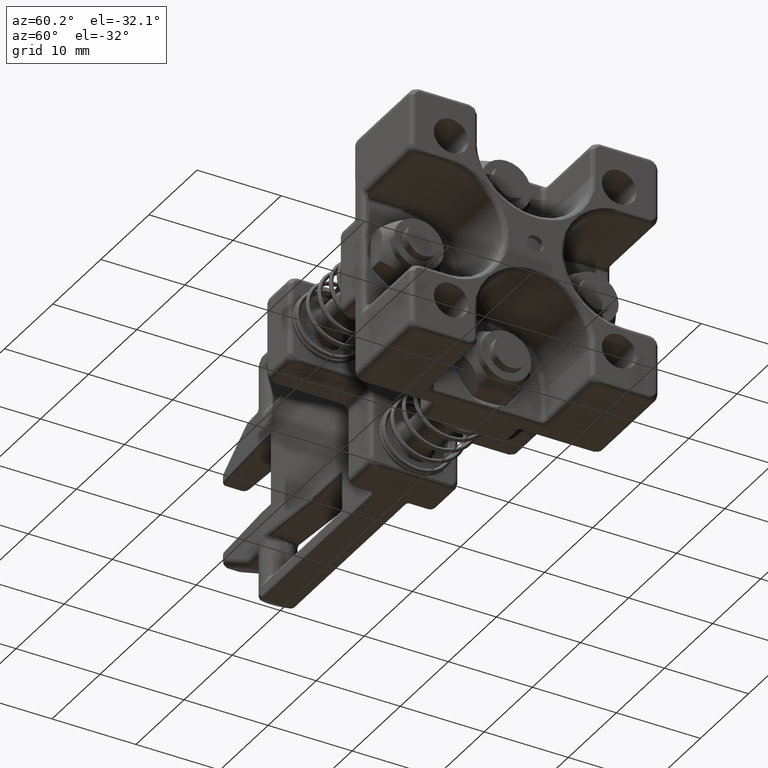
[diagram: clean part render]
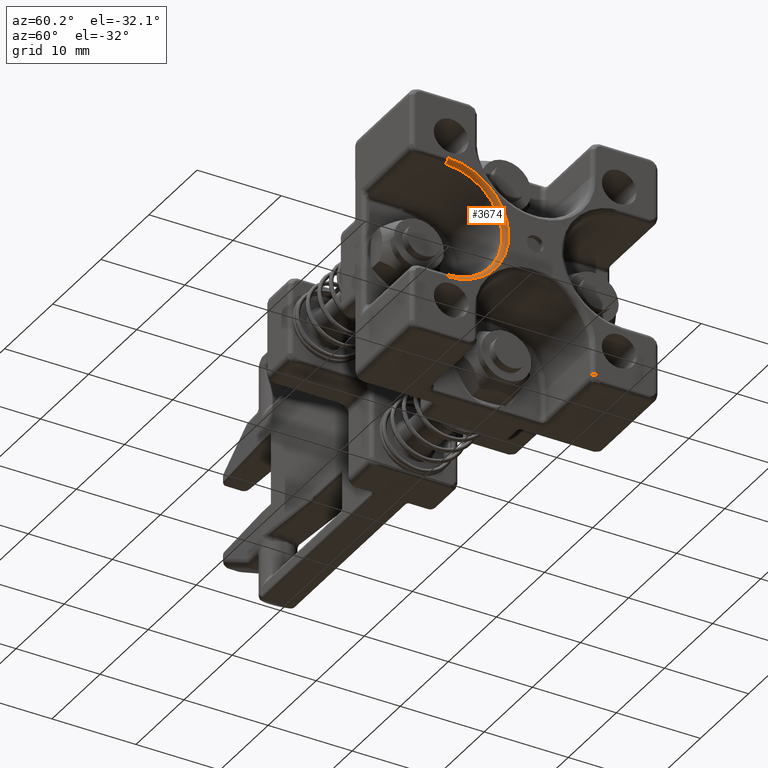
[diagram: same view with one face highlighted and labeled with its STEP entity id]
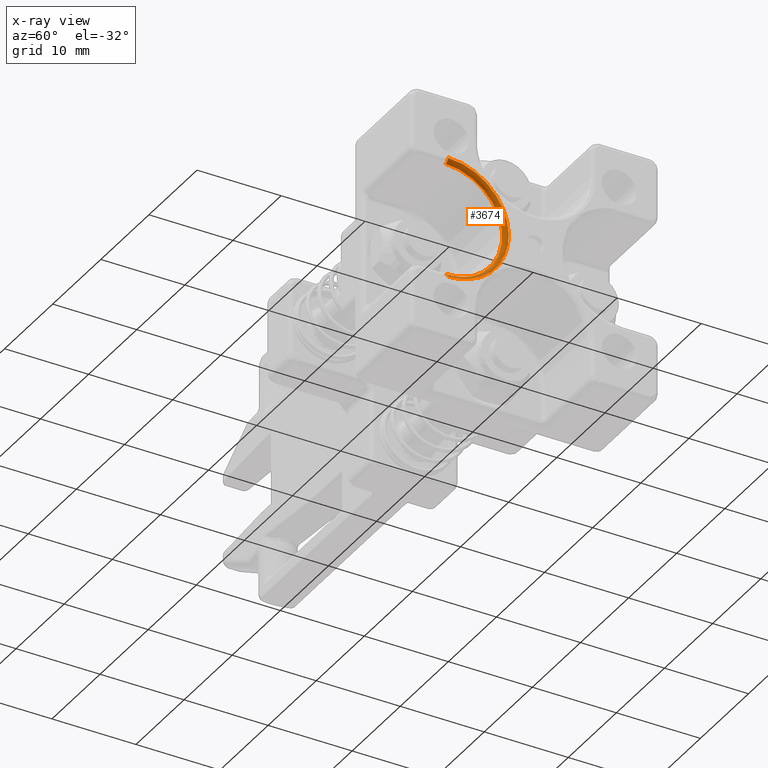
[diagram: x-ray of the same camera — body ghosted, the highlighted face saturated]
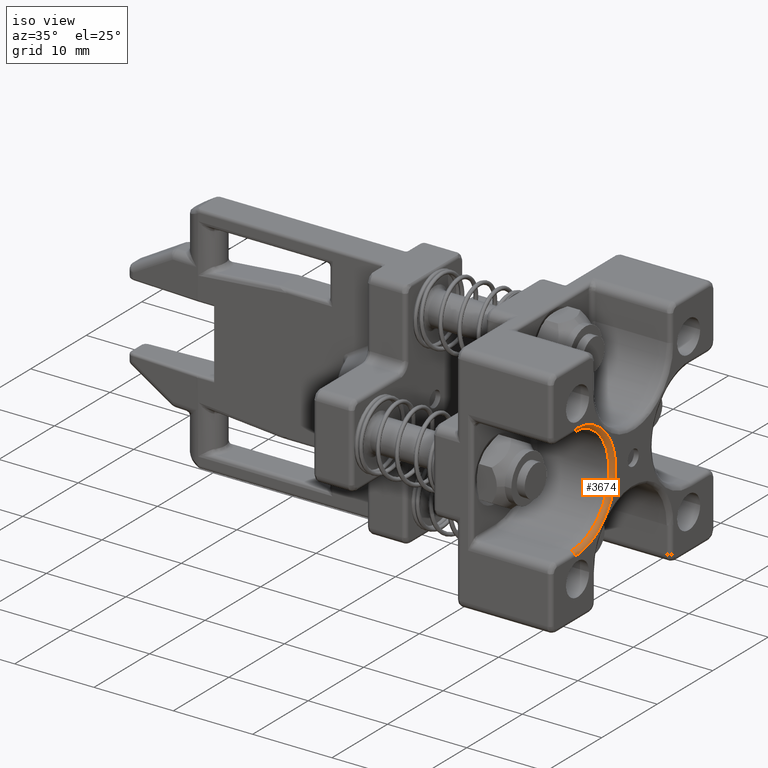
[diagram: same view with one face highlighted and labeled with its STEP entity id]
A machine part, auxiliary view. The second image highlights one B-rep face of the part: STEP entity #3674.
The next image is the same camera in x-ray: the body ghosted, the highlighted face saturated — about 0% of this face is hidden behind the body in this view.
A second angle (iso view) of the same face is appended — the face is thin or edge-on in the first view.
In plain terms, the highlighted face is a freeform B-spline surface patch.
Its self-contained STEP definition (entity closure, byte-faithful):
#108 = CARTESIAN_POINT ( 'NONE',  ( 1.298228346456692600, -0.1506519806590707600, 0.1205734115955279500 ) ) ;
#131 = CARTESIAN_POINT ( 'NONE',  ( 1.278543307086614100, 0.1220472478491110600, 0.2657480327867149900 ) ) ;
#748 = ORIENTED_EDGE ( 'NONE', *, *, #37989, .F. ) ;
#756 = CARTESIAN_POINT ( 'NONE',  ( 1.298228346456692400, -0.3564380404425152600, -0.2804693196173271800 ) ) ;
#1482 = CARTESIAN_POINT ( 'NONE',  ( 1.278543307086614100, -0.4094488151430148400, -0.2854330695754898600 ) ) ;
#2553 = CARTESIAN_POINT ( 'NONE',  ( 1.298228346456692600, -0.3484147720067328800, 0.2789853639546953100 ) ) ;
#2687 = CARTESIAN_POINT ( 'NONE',  ( 1.298228346456692600, -0.1384678865265122600, -0.08988711728196092900 ) ) ;
#2826 = CARTESIAN_POINT ( 'NONE',  ( 1.298228346456692600, -0.1679290259355025200, -0.1521382069899909800 ) ) ;
#2957 = CARTESIAN_POINT ( 'NONE',  ( 1.298228346456692400, -0.1336347762704958000, -0.07449688588290212500 ) ) ;
#3082 = CARTESIAN_POINT ( 'NONE',  ( 1.298228346456692800, -0.1580005601935164400, 0.1356834555621445600 ) ) ;
#3105 = CARTESIAN_POINT ( 'NONE',  ( 1.298228346456692800, -0.4094488151430149000, 0.2739018430696499300 ) ) ;
#3184 = ORIENTED_EDGE ( 'NONE', *, *, #36333, .T. ) ;
#3209 = CARTESIAN_POINT ( 'NONE',  ( 1.298228346456692800, -0.1321080962515349700, 0.06776777650283739900 ) ) ;
#3468 = CARTESIAN_POINT ( 'NONE',  ( 1.298228346456692600, -0.2888754048381251800, -0.2587968331932897800 ) ) ;
#3594 = CARTESIAN_POINT ( 'NONE',  ( 1.298228346456692600, -0.2965792879533516400, -0.2621887164639906700 ) ) ;
#3674 = ADVANCED_FACE ( 'NONE', ( #3880 ), #30138, .T. ) ;
#3880 = FACE_OUTER_BOUND ( 'NONE', #14477, .T. ) ;
#5826 = CARTESIAN_POINT ( 'NONE',  ( 1.298228346456692600, -0.1813165025345236400, -0.1726738146287606600 ) ) ;
#5959 = CARTESIAN_POINT ( 'NONE',  ( 1.298228346456692600, -0.1936945610505628500, -0.1879069962925155000 ) ) ;
#6093 = CARTESIAN_POINT ( 'NONE',  ( 1.298228346456692400, -0.2006548239580443800, 0.1948703642209116700 ) ) ;
#6112 = CARTESIAN_POINT ( 'NONE',  ( 1.278543307086614100, -0.4094488151430148400, 0.2657480327867149900 ) ) ;
#6224 = CARTESIAN_POINT ( 'NONE',  ( 1.298228346456692600, -0.1423855429144244600, -0.1007501815047052000 ) ) ;
#6248 = CARTESIAN_POINT ( 'NONE',  ( 1.290074536173758000, 0.1220472478491110600, 0.2657480327867149900 ) ) ;
#6262 = DIRECTION ( 'NONE',  ( -1.282514000000000100E-016, 1.000000000000000000, 0.0000000000000000000 ) ) ;
#6357 = CARTESIAN_POINT ( 'NONE',  ( 1.298228346456692800, -0.2614055377744747300, 0.2440520981255235600 ) ) ;
#6377 = CARTESIAN_POINT ( 'NONE',  ( 1.290074536173758000, 0.1220472478491111300, -0.2657480302054109300 ) ) ;
#6430 = DIRECTION ( 'NONE',  ( -1.000000000000000000, -1.282514000000000100E-016, 1.701640000000000000E-032 ) ) ;
#6505 = CARTESIAN_POINT ( 'NONE',  ( 1.278543307086614100, -0.4094488151430147900, -0.2657480302054111000 ) ) ;
#8823 = CARTESIAN_POINT ( 'NONE',  ( 1.298228346456692600, -0.4094488151430147300, 0.2854330721567937500 ) ) ;
#8957 = CARTESIAN_POINT ( 'NONE',  ( 1.298228346456692800, -0.1458669488073255600, 0.1095359654740882400 ) ) ;
#9092 = CARTESIAN_POINT ( 'NONE',  ( 1.298228346456692400, -0.1760608460301854600, 0.1643429280532836800 ) ) ;
#9113 = CARTESIAN_POINT ( 'NONE',  ( 1.298228346456692800, -0.4094488151430148400, 0.2854330721567937500 ) ) ;
#9223 = CARTESIAN_POINT ( 'NONE',  ( 1.298228346456692600, -0.1292092427476160300, 0.05421353984294272100 ) ) ;
#9349 = CARTESIAN_POINT ( 'NONE',  ( 1.298228346456692800, -0.1535750994605439000, -0.1271410397980658200 ) ) ;
#9481 = CARTESIAN_POINT ( 'NONE',  ( 1.298228346456692800, -0.1616795393789873200, -0.1418595008337426300 ) ) ;
#9606 = CARTESIAN_POINT ( 'NONE',  ( 1.298228346456692800, -0.2999128509595736500, -0.2635818650450365600 ) ) ;
#9737 = CARTESIAN_POINT ( 'NONE',  ( 1.298228346456692400, -0.3033073660240636600, -0.2649666393425320100 ) ) ;
#9862 = CARTESIAN_POINT ( 'NONE',  ( 1.298228346456692600, -0.3529659715450211300, -0.2797911259139468400 ) ) ;
#10121 = CARTESIAN_POINT ( 'NONE',  ( 1.298228346456692400, -0.3021423149223841900, -0.2644971828373276500 ) ) ;
#10449 = ORIENTED_EDGE ( 'NONE', *, *, #19986, .T. ) ;
#12086 = CARTESIAN_POINT ( 'NONE',  ( 1.298228346456692600, -0.1304634524789698400, -0.06103404184562182700 ) ) ;
#12217 = CARTESIAN_POINT ( 'NONE',  ( 1.298228346456692800, -0.2451058883803510800, -0.2333879678221519900 ) ) ;
#12241 = CARTESIAN_POINT ( 'NONE',  ( 1.298228346456692800, -0.4094488151430147300, -0.2854330695754898600 ) ) ;
#12354 = CARTESIAN_POINT ( 'NONE',  ( 1.298228346456692800, -0.1449516310150346400, 0.1073065015112798500 ) ) ;
#12480 = CARTESIAN_POINT ( 'NONE',  ( 1.298228346456692600, -0.1907987581720828300, 0.1839444039718791100 ) ) ;
#12509 = CARTESIAN_POINT ( 'NONE',  ( 1.298228346456692800, -0.4094488151430147300, -0.2739018404883460400 ) ) ;
#12567 = ORIENTED_EDGE ( 'NONE', *, *, #25226, .F. ) ;
#12614 = CARTESIAN_POINT ( 'NONE',  ( 1.298228346456692600, -0.1406509699595570000, 0.09646603821755801700 ) ) ;
#12738 = CARTESIAN_POINT ( 'NONE',  ( 1.298228346456692600, -0.3746705721700289700, -0.2838446695888778300 ) ) ;
#12763 = CARTESIAN_POINT ( 'NONE',  ( 1.298228346456693000, 0.1383548684149809300, 0.2739018430696499300 ) ) ;
#13249 = CARTESIAN_POINT ( 'NONE',  ( 1.298228346456692600, -0.4094488151430148400, -0.2854330695754898600 ) ) ;
#13451 = DIRECTION ( 'NONE',  ( 1.000000000000000000, 0.0000000000000000000, 0.0000000000000000000 ) ) ;
#14026 = CIRCLE ( 'NONE', #29546, 0.01968503937007875700 ) ;
#14477 = EDGE_LOOP ( 'NONE', ( #3184, #10449, #748, #12567 ) ) ;
#14930 = CARTESIAN_POINT ( 'NONE',  ( 1.298228346456692800, -0.3650317661500172600, 0.2819708565609753100 ) ) ;
#15200 = CARTESIAN_POINT ( 'NONE',  ( 1.298228346456692800, -0.2390983917544312300, -0.2291207948209982300 ) ) ;
#15287 = CARTESIAN_POINT ( 'NONE',  ( 1.278543307086614100, -0.4094488151430148400, 1.290651968503937100E-009 ) ) ;
#15339 = CARTESIAN_POINT ( 'NONE',  ( 1.298228346456692800, -0.2553173117767338400, 0.2402529361664400800 ) ) ;
#15361 = CARTESIAN_POINT ( 'NONE',  ( 1.290074536173758000, -0.4094488151430147300, -0.2657480302054111000 ) ) ;
#15475 = CARTESIAN_POINT ( 'NONE',  ( 1.298228346456692600, -0.2613242756381120600, -0.2441812203555275300 ) ) ;
#15508 = CARTESIAN_POINT ( 'NONE',  ( 1.278543307086614100, -0.4094488151430148400, 0.2854330721567937500 ) ) ;
#15598 = CARTESIAN_POINT ( 'NONE',  ( 1.298228346456692800, -0.2512402496234588100, -0.2375874421331981300 ) ) ;
#15624 = CARTESIAN_POINT ( 'NONE',  ( 1.298228346456692800, 0.1614173265892685800, 0.2854330721567938100 ) ) ;
#15735 = CARTESIAN_POINT ( 'NONE',  ( 1.298228346456692800, -0.1361873909828799600, 0.08337474711216189000 ) ) ;
#15736 = VERTEX_POINT ( 'NONE', #39230 ) ;
#17257 = VERTEX_POINT ( 'NONE', #39874 ) ;
#17818 = CIRCLE ( 'NONE', #32917, 0.2657480314960630200 ) ;
#18068 = CARTESIAN_POINT ( 'NONE',  ( 1.298228346456692600, -0.3876864792972181100, 0.2848374221618141800 ) ) ;
#18336 = CARTESIAN_POINT ( 'NONE',  ( 1.298228346456692600, -0.1240170203693765200, 0.01744459034001425900 ) ) ;
#18470 = CARTESIAN_POINT ( 'NONE',  ( 1.298228346456692800, -0.1652675934968337300, 0.1481245407955443200 ) ) ;
#18562 = VERTEX_POINT ( 'NONE', #28385 ) ;
#18601 = CARTESIAN_POINT ( 'NONE',  ( 1.298228346456692600, -0.1653967183081563600, -0.1480432760779249700 ) ) ;
#18734 = CARTESIAN_POINT ( 'NONE',  ( 1.298228346456692600, -0.2737653608715039900, -0.2514482536588433200 ) ) ;
#19358 = CARTESIAN_POINT ( 'NONE',  ( 1.298228346456692600, -0.3416810399309362900, -0.2773407176008671500 ) ) ;
#19986 = EDGE_CURVE ( 'NONE', #17257, #18562, #17818, .T. ) ;
#21299 = CARTESIAN_POINT ( 'NONE',  ( 1.298228346456692400, -0.1283898944006771900, -0.04979014080529110800 ) ) ;
#21431 = CARTESIAN_POINT ( 'NONE',  ( 1.298228346456692400, -0.1285706307064264600, -0.05080130025576101700 ) ) ;
#21565 = CARTESIAN_POINT ( 'NONE',  ( 1.298228346456692600, -0.1240151062306212400, -0.008722293234029296700 ) ) ;
#21696 = CARTESIAN_POINT ( 'NONE',  ( 1.298228346456692600, -0.3119456858653085200, 0.2682810666543362100 ) ) ;
#21833 = CARTESIAN_POINT ( 'NONE',  ( 1.298228346456692600, -0.1476038268155086000, -0.1140286695401980200 ) ) ;
#21855 = CARTESIAN_POINT ( 'NONE',  ( 1.278543307086614100, 0.1220472478491111400, -0.2657480302054108800 ) ) ;
#22091 = CARTESIAN_POINT ( 'NONE',  ( 1.298228346456692400, -0.3919833297814208100, -0.2854330695754897500 ) ) ;
#23891 = CARTESIAN_POINT ( 'NONE',  ( 1.298228346456692800, -0.4007230712907148300, 0.2854330721567938100 ) ) ;
#24433 = CARTESIAN_POINT ( 'NONE',  ( 1.298228346456692600, -0.1411677497793294400, -0.09750312798704823000 ) ) ;
#24573 = CARTESIAN_POINT ( 'NONE',  ( 1.298228346456692600, -0.1274774713685298800, -0.04441440681088756200 ) ) ;
#24704 = CARTESIAN_POINT ( 'NONE',  ( 1.298228346456692800, -0.3065376969070483500, 0.2662379205660924700 ) ) ;
#24820 = CARTESIAN_POINT ( 'NONE',  ( 1.298228346456692800, -0.1472600973883707000, 0.1128695284803070700 ) ) ;
#24950 = CARTESIAN_POINT ( 'NONE',  ( 1.298228346456692800, -0.3055026952620613100, 0.2658357490308316800 ) ) ;
#25226 = EDGE_CURVE ( 'NONE', #15736, #28371, #34479, .T. ) ;
#25339 = CARTESIAN_POINT ( 'NONE',  ( 1.298228346456692600, -0.3129827782161903600, -0.2687978438928357300 ) ) ;
#26870 = CARTESIAN_POINT ( 'NONE',  ( 1.298228346456692600, -0.3596578376630389400, 0.2810587675061629900 ) ) ;
#27408 = CARTESIAN_POINT ( 'NONE',  ( 1.298228346456692600, -0.3195616965703913000, 0.2709809299071525600 ) ) ;
#27547 = CARTESIAN_POINT ( 'NONE',  ( 1.298228346456692600, -0.2215418175599073200, 0.2157542553831798500 ) ) ;
#27682 = CARTESIAN_POINT ( 'NONE',  ( 1.298228346456692600, -0.2823077740543735700, 0.2558737169731502000 ) ) ;
#27809 = CARTESIAN_POINT ( 'NONE',  ( 1.298228346456692800, -0.1718613717191652100, 0.1582085668102106700 ) ) ;
#27944 = CARTESIAN_POINT ( 'NONE',  ( 1.298228346456692600, -0.1432108958675739600, -0.1029111169453125800 ) ) ;
#28076 = CARTESIAN_POINT ( 'NONE',  ( 1.298228346456692600, -0.1280174735811974200, -0.04764046516739520200 ) ) ;
#28364 = CARTESIAN_POINT ( 'NONE',  ( 1.298228346456692600, -0.4094488151430148400, -0.2854330695754898600 ) ) ;
#28371 = VERTEX_POINT ( 'NONE', #28364 ) ;
#28385 = CARTESIAN_POINT ( 'NONE',  ( 1.278543307086614100, -0.4094488151430148400, -0.2657480302054110500 ) ) ;
#28459 = CARTESIAN_POINT ( 'NONE',  ( 1.298228346456692600, -0.3260740693216475100, -0.2732614228695353100 ) ) ;
#28716 = CARTESIAN_POINT ( 'NONE',  ( 1.298228346456692800, -0.3495679746488111200, -0.2790983114478286000 ) ) ;
#29509 = CIRCLE ( 'NONE', #39412, 0.01968503937007875700 ) ;
#29546 = AXIS2_PLACEMENT_3D ( 'NONE', #1482, #38392, #13451 ) ;
#30138 =( BOUNDED_SURFACE ( )  B_SPLINE_SURFACE ( 3, 3, ( 
 ( #9113, #15624, #30821, #12241 ),
 ( #3105, #12763, #33928, #12509 ),
 ( #40313, #6248, #6377, #15361 ),
 ( #6112, #131, #21855, #6505 ) ),
 .UNSPECIFIED., .F., .F., .F. ) 
 B_SPLINE_SURFACE_WITH_KNOTS ( ( 4, 4 ),
 ( 4, 4 ),
 ( 0.0000000000000000000, 1.000000000000000000 ),
 ( 0.0000000000000000000, 1.000000000000000000 ),
 .UNSPECIFIED. ) 
 GEOMETRIC_REPRESENTATION_ITEM ( )  RATIONAL_B_SPLINE_SURFACE ( (
 ( 1.000000000000000000, 0.3333333333333334300, 0.3333333333333334300, 1.000000000000000000),
 ( 0.8047378541243649400, 0.2682459513747884100, 0.2682459513747884100, 0.8047378541243649400),
 ( 0.8047378541243649400, 0.2682459513747884100, 0.2682459513747884100, 0.8047378541243649400),
 ( 1.000000000000000000, 0.3333333333333334300, 0.3333333333333334300, 1.000000000000000000) ) ) 
 REPRESENTATION_ITEM ( '' )  SURFACE ( )  );
#30396 = CARTESIAN_POINT ( 'NONE',  ( 1.298228346456692600, -0.3725681635951396100, 0.2831001096764572100 ) ) ;
#30533 = CARTESIAN_POINT ( 'NONE',  ( 1.298228346456692600, -0.3349519279694465100, 0.2758140401631682400 ) ) ;
#30664 = CARTESIAN_POINT ( 'NONE',  ( 1.298228346456692600, -0.1256054223896158100, 0.03478514828127674700 ) ) ;
#30801 = CARTESIAN_POINT ( 'NONE',  ( 1.298228346456692600, -0.2255044124617208700, -0.2186500556802272200 ) ) ;
#30821 = CARTESIAN_POINT ( 'NONE',  ( 1.298228346456692800, 0.1614173265892687200, -0.2854330695754895800 ) ) ;
#30925 = CARTESIAN_POINT ( 'NONE',  ( 1.298228346456692800, -0.1732650166140066200, 0.1602975957470241800 ) ) ;
#31058 = CARTESIAN_POINT ( 'NONE',  ( 1.298228346456692600, -0.1803280190313250300, 0.1703504246791856500 ) ) ;
#31179 = CARTESIAN_POINT ( 'NONE',  ( 1.298228346456692600, -0.2367749992236328800, 0.2281323138991897500 ) ) ;
#31211 = DIRECTION ( 'NONE',  ( 0.0000000000000000000, 0.0000000000000000000, 1.000000000000000000 ) ) ;
#32917 = AXIS2_PLACEMENT_3D ( 'NONE', #15287, #6430, #40242 ) ;
#33770 = CARTESIAN_POINT ( 'NONE',  ( 1.298228346456692600, -0.2145784522127169000, -0.2087939898942881600 ) ) ;
#33908 = CARTESIAN_POINT ( 'NONE',  ( 1.298228346456692600, -0.2491512206866248200, -0.2361837972383422400 ) ) ;
#33928 = CARTESIAN_POINT ( 'NONE',  ( 1.298228346456693000, 0.1383548684149809900, -0.2739018404883458700 ) ) ;
#34036 = CARTESIAN_POINT ( 'NONE',  ( 1.298228346456692600, -0.1436130674028331100, -0.1039461185902961400 ) ) ;
#34164 = CARTESIAN_POINT ( 'NONE',  ( 1.298228346456693000, -0.2573106068623923800, 0.2415197904981715200 ) ) ;
#34289 = CARTESIAN_POINT ( 'NONE',  ( 1.298228346456692600, -0.3086986323476539300, 0.2670632735192416400 ) ) ;
#34479 = B_SPLINE_CURVE_WITH_KNOTS ( 'NONE', 3,
 ( #8823, #23891, #18068, #30396, #14930, #36618, #26870, #39753, #2553, #30533, #27408, #21696, #34289, #24704, #24950, #37288, #27682, #37021, #6357, #34164, #15339, #31179, #27547, #6093, #12480, #31058, #9092, #30925, #27809, #18470, #3082, #108, #24820, #8957, #12354, #40028, #12614, #15735, #3209, #37156, #36889, #9223, #40162, #30664, #18336, #21565, #37414, #39893, #24573, #28076, #21299, #21431, #12086, #2957, #2687, #24433, #6224, #27944, #34036, #21833, #9349, #9481, #18601, #2826, #40293, #5826, #5959, #33770, #30801, #15200, #12217, #33908, #15598, #15475, #18734, #3468, #3594, #9606, #10121, #9737, #25339, #28459, #19358, #28716, #9862, #37536, #756, #12738, #22091, #13249 ),
 .UNSPECIFIED., .F., .F.,
 ( 4, 1, 1, 1, 2, 2, 1, 1, 1, 2, 2, 1, 1, 2, 2, 2, 1, 1, 2, 2, 1, 1, 1, 2, 2, 1, 1, 1, 2, 2, 2, 1, 1, 1, 2, 2, 1, 1, 1, 2, 2, 1, 1, 2, 2, 2, 1, 1, 2, 2, 1, 1, 1, 2, 2, 1, 1, 1, 2, 2, 4 ),
 ( 0.0000000000000000000, 0.03125000000000040900, 0.04687500000000074200, 0.05468750000000090200, 0.05859375000000110300, 0.06250000000000129100, 0.09375000000000184600, 0.1093750000000021000, 0.1171875000000022300, 0.1210937500000021800, 0.1250000000000022500, 0.1562500000000028300, 0.1718750000000031900, 0.1796875000000034100, 0.1875000000000036400, 0.2500000000000048800, 0.2812500000000055000, 0.2968750000000058800, 0.3046875000000060500, 0.3125000000000062200, 0.3437500000000064400, 0.3593750000000066100, 0.3671875000000066600, 0.3710937500000066600, 0.3750000000000066600, 0.4062500000000064400, 0.4218750000000063300, 0.4296875000000062200, 0.4335937500000062200, 0.4375000000000062200, 0.5000000000000056600, 0.5312500000000054400, 0.5468750000000053300, 0.5546875000000051100, 0.5585937500000051100, 0.5625000000000050000, 0.5937500000000046600, 0.6093750000000044400, 0.6171875000000043300, 0.6210937500000042200, 0.6250000000000042200, 0.6562500000000036600, 0.6718750000000034400, 0.6796875000000033300, 0.6875000000000032200, 0.7500000000000023300, 0.7812500000000018900, 0.7968750000000016700, 0.8046875000000015500, 0.8125000000000014400, 0.8437500000000013300, 0.8593750000000012200, 0.8671875000000012200, 0.8710937500000012200, 0.8750000000000011100, 0.9062500000000006700, 0.9218750000000003300, 0.9296875000000002200, 0.9335937500000001100, 0.9375000000000001100, 1.000000000000000000 ),
 .UNSPECIFIED. ) ;
#36333 = EDGE_CURVE ( 'NONE', #15736, #17257, #29509, .T. ) ;
#36618 = CARTESIAN_POINT ( 'NONE',  ( 1.298228346456691900, -0.3618067587605182700, 0.2814310487530251600 ) ) ;
#36889 = CARTESIAN_POINT ( 'NONE',  ( 1.298228346456692600, -0.1296576879384297700, 0.05648284488868302700 ) ) ;
#37021 = CARTESIAN_POINT ( 'NONE',  ( 1.298228346456692600, -0.2675893130186776100, 0.2477692770547000000 ) ) ;
#37156 = CARTESIAN_POINT ( 'NONE',  ( 1.298228346456692800, -0.1303505024045571400, 0.05988084178491789200 ) ) ;
#37288 = CARTESIAN_POINT ( 'NONE',  ( 1.298228346456692800, -0.2954201443122086400, 0.2618449896181738700 ) ) ;
#37414 = CARTESIAN_POINT ( 'NONE',  ( 1.298228346456693000, -0.1246102776909119700, -0.02175629823181206600 ) ) ;
#37536 = CARTESIAN_POINT ( 'NONE',  ( 1.298228346456692400, -0.3552352765907436100, -0.2802395711047540600 ) ) ;
#37989 = EDGE_CURVE ( 'NONE', #28371, #18562, #14026, .T. ) ;
#38392 = DIRECTION ( 'NONE',  ( 1.282514000000000100E-016, -1.000000000000000000, 1.174273999999999900E-016 ) ) ;
#39230 = CARTESIAN_POINT ( 'NONE',  ( 1.298228346456692600, -0.4094488151430147300, 0.2854330721567937500 ) ) ;
#39412 = AXIS2_PLACEMENT_3D ( 'NONE', #15508, #6262, #31211 ) ;
#39753 = CARTESIAN_POINT ( 'NONE',  ( 1.298228346456692600, -0.3586475135966027400, 0.2808781857272404900 ) ) ;
#39874 = CARTESIAN_POINT ( 'NONE',  ( 1.278543307086614100, -0.4094488151430147300, 0.2657480327867149900 ) ) ;
#39893 = CARTESIAN_POINT ( 'NONE',  ( 1.298228346456692600, -0.1263478693215040200, -0.03687612301472371900 ) ) ;
#40028 = CARTESIAN_POINT ( 'NONE',  ( 1.298228346456692600, -0.1444821745098269500, 0.1061414504095927300 ) ) ;
#40162 = CARTESIAN_POINT ( 'NONE',  ( 1.298228346456692600, -0.1289794143521523200, 0.05301034449004882200 ) ) ;
#40242 = DIRECTION ( 'NONE',  ( 0.0000000000000000000, 0.0000000000000000000, 1.000000000000000000 ) ) ;
#40293 = CARTESIAN_POINT ( 'NONE',  ( 1.298228346456692800, -0.1691958802672207700, -0.1541315020756249800 ) ) ;
#40313 = CARTESIAN_POINT ( 'NONE',  ( 1.290074536173758000, -0.4094488151430149000, 0.2657480327867149900 ) ) ;